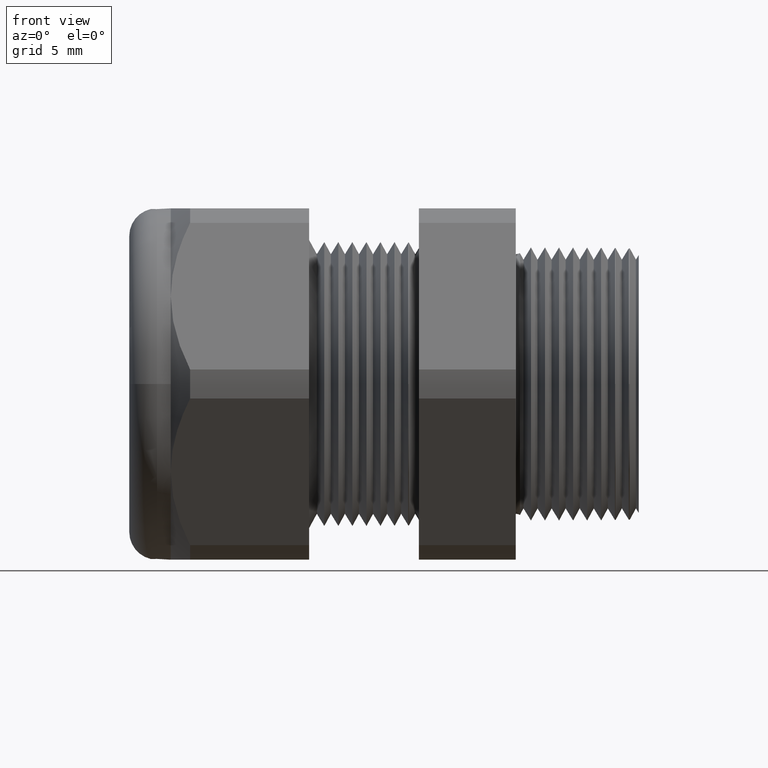
[diagram: clean part render]
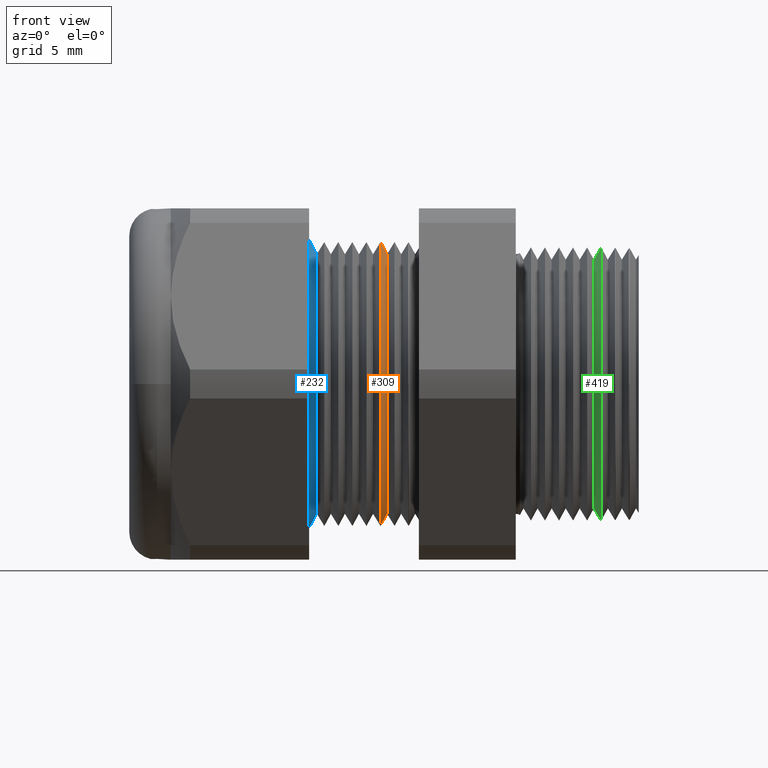
[diagram: same view with three faces highlighted in distinct colors, each labeled with its STEP entity id]
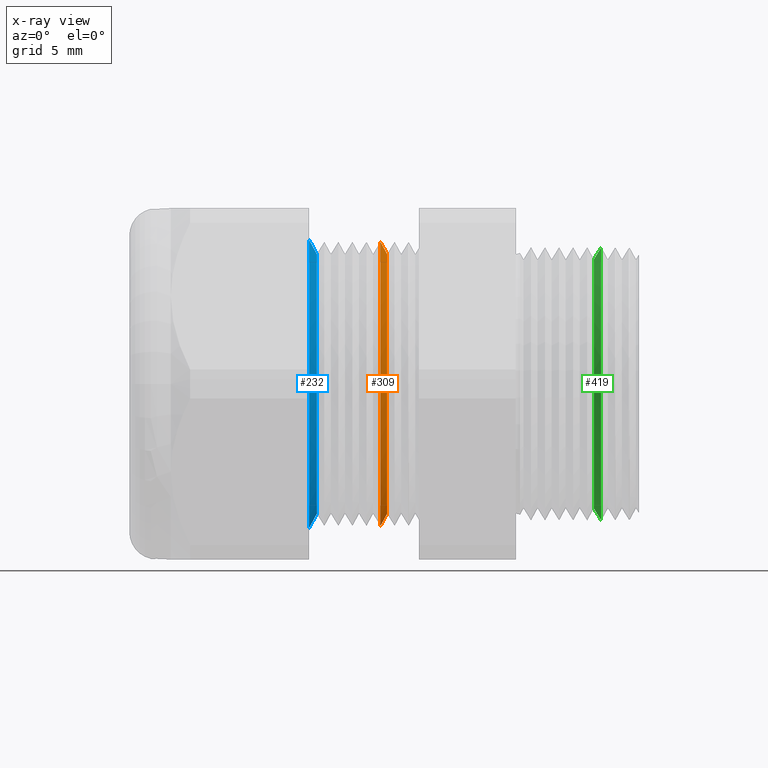
[diagram: x-ray of the same camera — body ghosted, the three highlighted faces saturated]
A machine part, front view with three faces highlighted in distinct colors.
The next image is the same camera in x-ray (body ghosted, the three faces saturated) — at least one of them is partly hidden behind the body in this view.
Their STEP definitions:

[orange] entity #309 — the highlighted conical surface has half-angle 61.5 deg.
#309 = ADVANCED_FACE ( 'NONE', ( #1850 ), #1845, .T. ) ;
#310 = EDGE_LOOP ( 'NONE', ( #311, #312, #314, #315 ) ) ;
#311 = ORIENTED_EDGE ( 'NONE', *, *, #887, .F. ) ;
#312 = ORIENTED_EDGE ( 'NONE', *, *, #313, .F. ) ;
#313 = EDGE_CURVE ( 'NONE', #871, #870, #1839, .T. ) ;
#314 = ORIENTED_EDGE ( 'NONE', *, *, #810, .T. ) ;
#315 = ORIENTED_EDGE ( 'NONE', *, *, #332, .F. ) ;
#332 = EDGE_CURVE ( 'NONE', #888, #891, #1885, .T. ) ;
#810 = EDGE_CURVE ( 'NONE', #871, #891, #2666, .T. ) ;
#870 = VERTEX_POINT ( 'NONE', #2797 ) ;
#871 = VERTEX_POINT ( 'NONE', #2796 ) ;
#887 = EDGE_CURVE ( 'NONE', #870, #888, #2830, .T. ) ;
#888 = VERTEX_POINT ( 'NONE', #2826 ) ;
#891 = VERTEX_POINT ( 'NONE', #2820 ) ;
#1836 = DIRECTION ( 'NONE',  ( 0.0000000000000000000, 0.0000000000000000000, -1.000000000000000000 ) ) ;
#1837 = DIRECTION ( 'NONE',  ( 1.000000000000000000, 0.0000000000000000000, 0.0000000000000000000 ) ) ;
#1838 = AXIS2_PLACEMENT_3D ( 'NONE', #1844, #1837, #1836 ) ;
#1839 = CIRCLE ( 'NONE', #1838, 0.3694091762748932300 ) ;
#1840 = DIRECTION ( 'NONE',  ( 0.0000000000000000000, 0.0000000000000000000, 1.000000000000000000 ) ) ;
#1841 = DIRECTION ( 'NONE',  ( -1.000000000000000000, 0.0000000000000000000, 0.0000000000000000000 ) ) ;
#1842 = CARTESIAN_POINT ( 'NONE',  ( -0.6981889763779525200, -7.498060408444419900E-018, 0.0000000000000000000 ) ) ;
#1843 = AXIS2_PLACEMENT_3D ( 'NONE', #1842, #1841, #1840 ) ;
#1844 = CARTESIAN_POINT ( 'NONE',  ( -0.6761499572833867800, -7.498060408444419900E-018, 0.0000000000000000000 ) ) ;
#1845 = CONICAL_SURFACE ( 'NONE', #1843, 0.4099999999999998600, 1.073377489976514300 ) ;
#1850 = FACE_OUTER_BOUND ( 'NONE', #310, .T. ) ;
#1877 = DIRECTION ( 'NONE',  ( 0.0000000000000000000, 0.0000000000000000000, 1.000000000000000000 ) ) ;
#1878 = DIRECTION ( 'NONE',  ( -1.000000000000000000, 0.0000000000000000000, 0.0000000000000000000 ) ) ;
#1879 = CARTESIAN_POINT ( 'NONE',  ( -0.6949413101463806100, -5.998448326755536200E-018, 0.0000000000000000000 ) ) ;
#1880 = AXIS2_PLACEMENT_3D ( 'NONE', #1879, #1878, #1877 ) ;
#1885 = CIRCLE ( 'NONE', #1880, 0.4040185428871366200 ) ;
#2663 = DIRECTION ( 'NONE',  ( -0.4771587602596069600, 0.0000000000000000000, 0.8788171126619660500 ) ) ;
#2664 = VECTOR ( 'NONE', #2663, 39.37007874015748900 ) ;
#2665 = CARTESIAN_POINT ( 'NONE',  ( -0.6981889763779525200, -7.498060408444419900E-018, 0.4099999999999998600 ) ) ;
#2666 = LINE ( 'NONE', #2665, #2664 ) ;
#2796 = CARTESIAN_POINT ( 'NONE',  ( -0.6761499572833867800, -7.498060408444419900E-018, 0.3694091762748932300 ) ) ;
#2797 = CARTESIAN_POINT ( 'NONE',  ( -0.6761499572833867800, 3.986072862373647700E-017, -0.3694091762748932300 ) ) ;
#2820 = CARTESIAN_POINT ( 'NONE',  ( -0.6949413101463806100, 4.347955320753539800E-017, 0.4040185428871364600 ) ) ;
#2826 = CARTESIAN_POINT ( 'NONE',  ( -0.6949413101463806100, -5.998448326755536200E-018, -0.4040185428871364600 ) ) ;
#2827 = DIRECTION ( 'NONE',  ( -0.4771587602596069600, 1.076240564057395700E-016, -0.8788171126619660500 ) ) ;
#2828 = VECTOR ( 'NONE', #2827, 39.37007874015748900 ) ;
#2829 = CARTESIAN_POINT ( 'NONE',  ( -0.6981889763779525200, 4.271245835659704700E-017, -0.4099999999999998600 ) ) ;
#2830 = LINE ( 'NONE', #2829, #2828 ) ;

[blue] entity #232 — the highlighted conical surface has half-angle 61.5 deg.
#174 = EDGE_CURVE ( 'NONE', #904, #901, #1655, .T. ) ;
#232 = ADVANCED_FACE ( 'NONE', ( #1711 ), #1710, .T. ) ;
#233 = EDGE_LOOP ( 'NONE', ( #234, #235, #237, #238 ) ) ;
#234 = ORIENTED_EDGE ( 'NONE', *, *, #900, .F. ) ;
#235 = ORIENTED_EDGE ( 'NONE', *, *, #236, .F. ) ;
#236 = EDGE_CURVE ( 'NONE', #972, #970, #1709, .T. ) ;
#237 = ORIENTED_EDGE ( 'NONE', *, *, #906, .T. ) ;
#238 = ORIENTED_EDGE ( 'NONE', *, *, #174, .T. ) ;
#900 = EDGE_CURVE ( 'NONE', #970, #901, #2814, .T. ) ;
#901 = VERTEX_POINT ( 'NONE', #2805 ) ;
#904 = VERTEX_POINT ( 'NONE', #2861 ) ;
#906 = EDGE_CURVE ( 'NONE', #972, #904, #2860, .T. ) ;
#970 = VERTEX_POINT ( 'NONE', #2987 ) ;
#972 = VERTEX_POINT ( 'NONE', #2981 ) ;
#1651 = DIRECTION ( 'NONE',  ( 0.0000000000000000000, 0.0000000000000000000, -1.000000000000000000 ) ) ;
#1652 = DIRECTION ( 'NONE',  ( 1.000000000000000000, 0.0000000000000000000, 0.0000000000000000000 ) ) ;
#1653 = CARTESIAN_POINT ( 'NONE',  ( -0.8981889763779525900, 0.0000000000000000000, 0.0000000000000000000 ) ) ;
#1654 = AXIS2_PLACEMENT_3D ( 'NONE', #1653, #1652, #1651 ) ;
#1655 = CIRCLE ( 'NONE', #1654, 0.4099999999999998600 ) ;
#1701 = DIRECTION ( 'NONE',  ( 0.0000000000000000000, 0.0000000000000000000, -1.000000000000000000 ) ) ;
#1702 = DIRECTION ( 'NONE',  ( 1.000000000000000000, 0.0000000000000000000, 0.0000000000000000000 ) ) ;
#1703 = CARTESIAN_POINT ( 'NONE',  ( -0.8761499572833868500, 0.0000000000000000000, 0.0000000000000000000 ) ) ;
#1704 = AXIS2_PLACEMENT_3D ( 'NONE', #1703, #1702, #1701 ) ;
#1705 = DIRECTION ( 'NONE',  ( 0.0000000000000000000, 0.0000000000000000000, 1.000000000000000000 ) ) ;
#1706 = DIRECTION ( 'NONE',  ( -1.000000000000000000, 0.0000000000000000000, 0.0000000000000000000 ) ) ;
#1707 = CARTESIAN_POINT ( 'NONE',  ( -0.8981889763779525900, 0.0000000000000000000, 0.0000000000000000000 ) ) ;
#1708 = AXIS2_PLACEMENT_3D ( 'NONE', #1707, #1706, #1705 ) ;
#1709 = CIRCLE ( 'NONE', #1704, 0.3694091762748932300 ) ;
#1710 = CONICAL_SURFACE ( 'NONE', #1708, 0.4099999999999998600, 1.073377489976514300 ) ;
#1711 = FACE_OUTER_BOUND ( 'NONE', #233, .T. ) ;
#2805 = CARTESIAN_POINT ( 'NONE',  ( -0.8981889763779525900, 5.021051876504146900E-017, -0.4099999999999998600 ) ) ;
#2806 = DIRECTION ( 'NONE',  ( -0.4771587602596069600, 1.076240564057395700E-016, -0.8788171126619660500 ) ) ;
#2807 = VECTOR ( 'NONE', #2806, 39.37007874015748900 ) ;
#2808 = CARTESIAN_POINT ( 'NONE',  ( -0.8981889763779525900, 5.021051876504146900E-017, -0.4099999999999998600 ) ) ;
#2814 = LINE ( 'NONE', #2808, #2807 ) ;
#2857 = DIRECTION ( 'NONE',  ( -0.4771587602596069600, 0.0000000000000000000, 0.8788171126619660500 ) ) ;
#2858 = VECTOR ( 'NONE', #2857, 39.37007874015748900 ) ;
#2859 = CARTESIAN_POINT ( 'NONE',  ( -0.8981889763779525900, 0.0000000000000000000, 0.4099999999999998600 ) ) ;
#2860 = LINE ( 'NONE', #2859, #2858 ) ;
#2861 = CARTESIAN_POINT ( 'NONE',  ( -0.8981889763779525900, 0.0000000000000000000, 0.4099999999999998600 ) ) ;
#2981 = CARTESIAN_POINT ( 'NONE',  ( -0.8761499572833868500, 0.0000000000000000000, 0.3694091762748932300 ) ) ;
#2987 = CARTESIAN_POINT ( 'NONE',  ( -0.8761499572833868500, 4.772504764755615400E-017, -0.3694091762748932300 ) ) ;

[green] entity #419 — the highlighted conical surface has half-angle 58.5 deg.
#47 = EDGE_CURVE ( 'NONE', #1206, #1093, #1421, .T. ) ;
#419 = ADVANCED_FACE ( 'NONE', ( #1954 ), #2013, .T. ) ;
#420 = EDGE_LOOP ( 'NONE', ( #421, #422, #423, #424, #425 ) ) ;
#421 = ORIENTED_EDGE ( 'NONE', *, *, #1212, .F. ) ;
#422 = ORIENTED_EDGE ( 'NONE', *, *, #440, .T. ) ;
#423 = ORIENTED_EDGE ( 'NONE', *, *, #1195, .T. ) ;
#424 = ORIENTED_EDGE ( 'NONE', *, *, #47, .T. ) ;
#425 = ORIENTED_EDGE ( 'NONE', *, *, #1092, .T. ) ;
#440 = EDGE_CURVE ( 'NONE', #1216, #1219, #2049, .T. ) ;
#1092 = EDGE_CURVE ( 'NONE', #1093, #1214, #3196, .T. ) ;
#1093 = VERTEX_POINT ( 'NONE', #3191 ) ;
#1195 = EDGE_CURVE ( 'NONE', #1219, #1206, #3383, .T. ) ;
#1206 = VERTEX_POINT ( 'NONE', #3427 ) ;
#1212 = EDGE_CURVE ( 'NONE', #1216, #1214, #3415, .T. ) ;
#1214 = VERTEX_POINT ( 'NONE', #3411 ) ;
#1216 = VERTEX_POINT ( 'NONE', #3410 ) ;
#1219 = VERTEX_POINT ( 'NONE', #3404 ) ;
#1417 = DIRECTION ( 'NONE',  ( 0.0000000000000000000, 0.0000000000000000000, -1.000000000000000000 ) ) ;
#1418 = DIRECTION ( 'NONE',  ( -1.000000000000000000, 0.0000000000000000000, 0.0000000000000000000 ) ) ;
#1419 = CARTESIAN_POINT ( 'NONE',  ( -0.06698647031329733900, -1.677544326938288200E-016, 0.0000000000000000000 ) ) ;
#1420 = AXIS2_PLACEMENT_3D ( 'NONE', #1419, #1418, #1417 ) ;
#1421 = CIRCLE ( 'NONE', #1420, 0.3882341963680853700 ) ;
#1954 = FACE_OUTER_BOUND ( 'NONE', #420, .T. ) ;
#1990 = CARTESIAN_POINT ( 'NONE',  ( -0.08796098090543433300, -7.498060408444419900E-018, 0.0000000000000000000 ) ) ;
#2008 = DIRECTION ( 'NONE',  ( 0.0000000000000000000, 0.0000000000000000000, -1.000000000000000000 ) ) ;
#2009 = DIRECTION ( 'NONE',  ( 1.000000000000000000, 0.0000000000000000000, 0.0000000000000000000 ) ) ;
#2010 = CARTESIAN_POINT ( 'NONE',  ( -0.08796098090543433300, -7.498060408444419900E-018, 0.0000000000000000000 ) ) ;
#2011 = AXIS2_PLACEMENT_3D ( 'NONE', #2010, #2009, #2008 ) ;
#2013 = CONICAL_SURFACE ( 'NONE', #2011, 0.3540069058716038800, 1.021017612416687200 ) ;
#2046 = DIRECTION ( 'NONE',  ( 0.0000000000000000000, 0.0000000000000000000, -1.000000000000000000 ) ) ;
#2047 = DIRECTION ( 'NONE',  ( 1.000000000000000000, 0.0000000000000000000, 0.0000000000000000000 ) ) ;
#2048 = AXIS2_PLACEMENT_3D ( 'NONE', #1990, #2047, #2046 ) ;
#2049 = CIRCLE ( 'NONE', #2048, 0.3540069058716038800 ) ;
#3191 = CARTESIAN_POINT ( 'NONE',  ( -0.06698647031329733900, -0.3882341963680855400, 0.0000000000000000000 ) ) ;
#3192 = DIRECTION ( 'NONE',  ( 0.0000000000000000000, 0.0000000000000000000, -1.000000000000000000 ) ) ;
#3193 = DIRECTION ( 'NONE',  ( -1.000000000000000000, 0.0000000000000000000, 0.0000000000000000000 ) ) ;
#3194 = CARTESIAN_POINT ( 'NONE',  ( -0.06698647031329733900, -1.677544326938288200E-016, 0.0000000000000000000 ) ) ;
#3195 = AXIS2_PLACEMENT_3D ( 'NONE', #3194, #3193, #3192 ) ;
#3196 = CIRCLE ( 'NONE', #3195, 0.3882341963680853700 ) ;
#3380 = DIRECTION ( 'NONE',  ( 0.5224985647159451400, 0.0000000000000000000, -0.8526401643540945100 ) ) ;
#3381 = VECTOR ( 'NONE', #3380, 39.37007874015748100 ) ;
#3382 = CARTESIAN_POINT ( 'NONE',  ( -0.08796098090543433300, -7.498060408444419900E-018, -0.3540069058716038800 ) ) ;
#3383 = LINE ( 'NONE', #3382, #3381 ) ;
#3404 = CARTESIAN_POINT ( 'NONE',  ( -0.08796098090543433300, 3.797449450883744700E-017, -0.3540069058716038800 ) ) ;
#3410 = CARTESIAN_POINT ( 'NONE',  ( -0.08796098090543433300, -7.498060408444419900E-018, 0.3540069058716038800 ) ) ;
#3411 = CARTESIAN_POINT ( 'NONE',  ( -0.06698647031329733900, 4.004691618172745900E-017, 0.3882341963680836500 ) ) ;
#3412 = DIRECTION ( 'NONE',  ( 0.5224985647159451400, 1.044183048100714900E-016, 0.8526401643540945100 ) ) ;
#3413 = VECTOR ( 'NONE', #3412, 39.37007874015748100 ) ;
#3414 = CARTESIAN_POINT ( 'NONE',  ( -0.08796098090543433300, 3.585528200672738700E-017, 0.3540069058716038800 ) ) ;
#3415 = LINE ( 'NONE', #3414, #3413 ) ;
#3427 = CARTESIAN_POINT ( 'NONE',  ( -0.06698647031329733900, -7.498060408444432200E-018, -0.3882341963680836500 ) ) ;